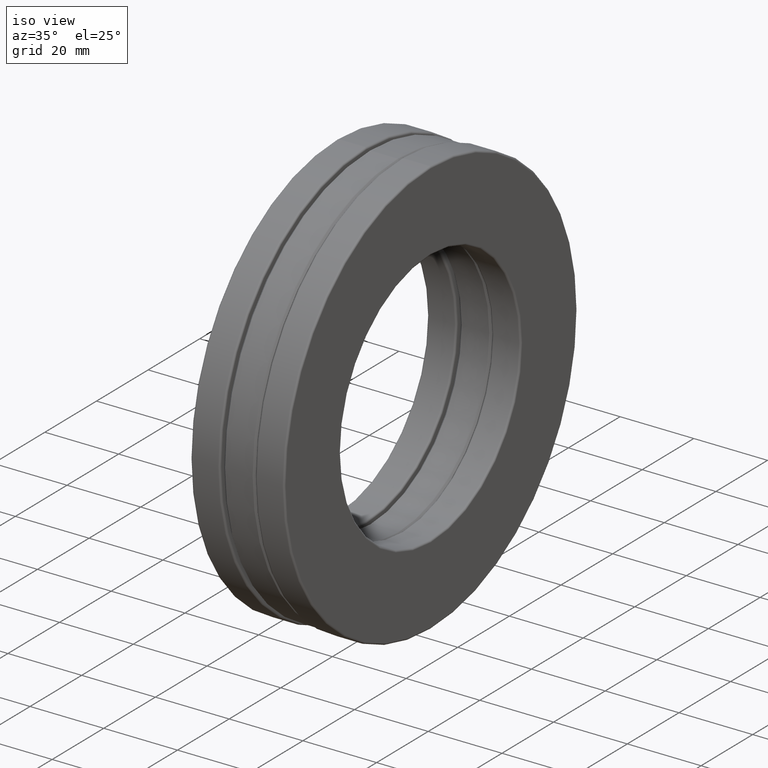
[diagram: clean part render]
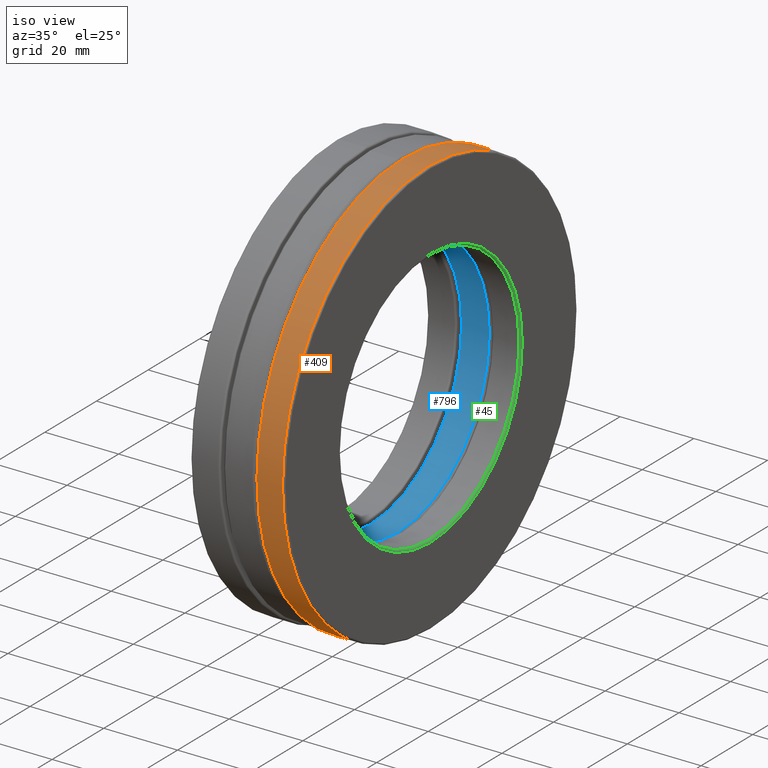
[diagram: same view with three faces highlighted in distinct colors, each labeled with its STEP entity id]
A machine part, iso view with three faces highlighted in distinct colors.
Their STEP definitions:

[orange] entity #409 — the highlighted cylindrical surface (bore or boss wall) has radius 56.7531 mm, axis along (-1, -0, -0).
#133 = EDGE_LOOP ( 'NONE', ( #630 ) ) ;
#162 = CARTESIAN_POINT ( 'NONE',  ( 0.4800000000000000900, 0.0000000000000000000, 0.0000000000000000000 ) ) ;
#212 = FACE_OUTER_BOUND ( 'NONE', #133, .T. ) ;
#275 = ORIENTED_EDGE ( 'NONE', *, *, #495, .F. ) ;
#283 = DIRECTION ( 'NONE',  ( 0.0000000000000000000, 0.0000000000000000000, 1.000000000000000000 ) ) ;
#409 = ADVANCED_FACE ( 'NONE', ( #914, #212 ), #1121, .T. ) ;
#478 = CARTESIAN_POINT ( 'NONE',  ( 0.4800000000000000900, 0.0000000000000000000, 2.234375000000000000 ) ) ;
#495 = EDGE_CURVE ( 'NONE', #1405, #1405, #584, .T. ) ;
#525 = AXIS2_PLACEMENT_3D ( 'NONE', #1471, #664, #1102 ) ;
#577 = CARTESIAN_POINT ( 'NONE',  ( 0.2074999999999999600, 0.0000000000000000000, 2.234375000000000000 ) ) ;
#584 = CIRCLE ( 'NONE', #776, 2.234375000000000000 ) ;
#595 = VERTEX_POINT ( 'NONE', #478 ) ;
#630 = ORIENTED_EDGE ( 'NONE', *, *, #1414, .T. ) ;
#642 = EDGE_LOOP ( 'NONE', ( #275 ) ) ;
#664 = DIRECTION ( 'NONE',  ( -1.000000000000000000, -0.0000000000000000000, -0.0000000000000000000 ) ) ;
#754 = DIRECTION ( 'NONE',  ( -1.000000000000000000, -0.0000000000000000000, -0.0000000000000000000 ) ) ;
#776 = AXIS2_PLACEMENT_3D ( 'NONE', #1094, #754, #1008 ) ;
#914 = FACE_OUTER_BOUND ( 'NONE', #642, .T. ) ;
#1008 = DIRECTION ( 'NONE',  ( 0.0000000000000000000, 0.0000000000000000000, 1.000000000000000000 ) ) ;
#1094 = CARTESIAN_POINT ( 'NONE',  ( 0.2074999999999999600, 0.0000000000000000000, 0.0000000000000000000 ) ) ;
#1102 = DIRECTION ( 'NONE',  ( 0.0000000000000000000, 0.0000000000000000000, 1.000000000000000000 ) ) ;
#1121 = CYLINDRICAL_SURFACE ( 'NONE', #525, 2.234375000000000000 ) ;
#1215 = CIRCLE ( 'NONE', #1292, 2.234375000000000000 ) ;
#1292 = AXIS2_PLACEMENT_3D ( 'NONE', #162, #1296, #283 ) ;
#1296 = DIRECTION ( 'NONE',  ( -1.000000000000000000, -0.0000000000000000000, -0.0000000000000000000 ) ) ;
#1405 = VERTEX_POINT ( 'NONE', #577 ) ;
#1414 = EDGE_CURVE ( 'NONE', #595, #595, #1215, .T. ) ;
#1471 = CARTESIAN_POINT ( 'NONE',  ( 0.0000000000000000000, 0.0000000000000000000, 0.0000000000000000000 ) ) ;

[blue] entity #796 — the highlighted cylindrical surface (bore or boss wall) has radius 35.433 mm, axis along (-1, -0, -0).
#117 = DIRECTION ( 'NONE',  ( -1.000000000000000000, -0.0000000000000000000, -0.0000000000000000000 ) ) ;
#242 = DIRECTION ( 'NONE',  ( 0.0000000000000000000, 0.0000000000000000000, 1.000000000000000000 ) ) ;
#257 = VERTEX_POINT ( 'NONE', #683 ) ;
#271 = ORIENTED_EDGE ( 'NONE', *, *, #1182, .T. ) ;
#376 = AXIS2_PLACEMENT_3D ( 'NONE', #1379, #117, #242 ) ;
#414 = AXIS2_PLACEMENT_3D ( 'NONE', #441, #1307, #1184 ) ;
#420 = CYLINDRICAL_SURFACE ( 'NONE', #414, 1.395000000000000000 ) ;
#441 = CARTESIAN_POINT ( 'NONE',  ( 0.0000000000000000000, 0.0000000000000000000, 0.0000000000000000000 ) ) ;
#483 = ORIENTED_EDGE ( 'NONE', *, *, #517, .F. ) ;
#517 = EDGE_CURVE ( 'NONE', #942, #942, #809, .T. ) ;
#536 = EDGE_LOOP ( 'NONE', ( #271 ) ) ;
#668 = FACE_OUTER_BOUND ( 'NONE', #536, .T. ) ;
#683 = CARTESIAN_POINT ( 'NONE',  ( -0.1474999999999999400, 0.0000000000000000000, 1.395000000000000000 ) ) ;
#796 = ADVANCED_FACE ( 'NONE', ( #1183, #668 ), #420, .F. ) ;
#808 = CIRCLE ( 'NONE', #376, 1.395000000000000000 ) ;
#809 = CIRCLE ( 'NONE', #1387, 1.395000000000000000 ) ;
#942 = VERTEX_POINT ( 'NONE', #1100 ) ;
#1046 = EDGE_LOOP ( 'NONE', ( #483 ) ) ;
#1100 = CARTESIAN_POINT ( 'NONE',  ( 0.1475000000000001300, 0.0000000000000000000, 1.395000000000000000 ) ) ;
#1182 = EDGE_CURVE ( 'NONE', #257, #257, #808, .T. ) ;
#1183 = FACE_OUTER_BOUND ( 'NONE', #1046, .T. ) ;
#1184 = DIRECTION ( 'NONE',  ( 0.0000000000000000000, 0.0000000000000000000, 1.000000000000000000 ) ) ;
#1234 = CARTESIAN_POINT ( 'NONE',  ( 0.1475000000000001300, 0.0000000000000000000, 0.0000000000000000000 ) ) ;
#1307 = DIRECTION ( 'NONE',  ( -1.000000000000000000, -0.0000000000000000000, -0.0000000000000000000 ) ) ;
#1379 = CARTESIAN_POINT ( 'NONE',  ( -0.1474999999999999400, 0.0000000000000000000, 0.0000000000000000000 ) ) ;
#1387 = AXIS2_PLACEMENT_3D ( 'NONE', #1234, #1447, #1469 ) ;
#1447 = DIRECTION ( 'NONE',  ( -1.000000000000000000, -0.0000000000000000000, -0.0000000000000000000 ) ) ;
#1469 = DIRECTION ( 'NONE',  ( 0.0000000000000000000, 0.0000000000000000000, 1.000000000000000000 ) ) ;

[green] entity #45 — the highlighted toroidal blend (fillet) surface has major radius 35.433 mm and minor (blend) radius 0.508 mm.
#27 = DIRECTION ( 'NONE',  ( -1.000000000000000000, -0.0000000000000000000, -0.0000000000000000000 ) ) ;
#43 = EDGE_LOOP ( 'NONE', ( #803 ) ) ;
#45 = ADVANCED_FACE ( 'NONE', ( #923, #593 ), #77, .T. ) ;
#77 = TOROIDAL_SURFACE ( 'NONE', #337, 1.395000000000000000, 0.01999999999999999000 ) ;
#106 = DIRECTION ( 'NONE',  ( -1.000000000000000000, -0.0000000000000000000, -0.0000000000000000000 ) ) ;
#213 = DIRECTION ( 'NONE',  ( -1.000000000000000000, -0.0000000000000000000, -0.0000000000000000000 ) ) ;
#294 = CARTESIAN_POINT ( 'NONE',  ( 0.4800000000000000900, 0.0000000000000000000, 1.375000000000000000 ) ) ;
#337 = AXIS2_PLACEMENT_3D ( 'NONE', #537, #213, #571 ) ;
#385 = EDGE_CURVE ( 'NONE', #955, #955, #502, .T. ) ;
#417 = AXIS2_PLACEMENT_3D ( 'NONE', #1257, #27, #1053 ) ;
#445 = ORIENTED_EDGE ( 'NONE', *, *, #652, .T. ) ;
#487 = CARTESIAN_POINT ( 'NONE',  ( 0.5000000000000000000, 0.0000000000000000000, 1.395000000000000000 ) ) ;
#502 = CIRCLE ( 'NONE', #897, 1.395000000000000000 ) ;
#537 = CARTESIAN_POINT ( 'NONE',  ( 0.4800000000000000900, 0.0000000000000000000, 0.0000000000000000000 ) ) ;
#556 = CARTESIAN_POINT ( 'NONE',  ( 0.5000000000000000000, 0.0000000000000000000, 0.0000000000000000000 ) ) ;
#571 = DIRECTION ( 'NONE',  ( 0.0000000000000000000, 0.0000000000000000000, 1.000000000000000000 ) ) ;
#593 = FACE_OUTER_BOUND ( 'NONE', #866, .T. ) ;
#652 = EDGE_CURVE ( 'NONE', #1242, #1242, #1410, .T. ) ;
#672 = DIRECTION ( 'NONE',  ( 0.0000000000000000000, 0.0000000000000000000, 1.000000000000000000 ) ) ;
#803 = ORIENTED_EDGE ( 'NONE', *, *, #385, .F. ) ;
#866 = EDGE_LOOP ( 'NONE', ( #445 ) ) ;
#897 = AXIS2_PLACEMENT_3D ( 'NONE', #556, #106, #672 ) ;
#923 = FACE_OUTER_BOUND ( 'NONE', #43, .T. ) ;
#955 = VERTEX_POINT ( 'NONE', #487 ) ;
#1053 = DIRECTION ( 'NONE',  ( 0.0000000000000000000, 0.0000000000000000000, 1.000000000000000000 ) ) ;
#1242 = VERTEX_POINT ( 'NONE', #294 ) ;
#1257 = CARTESIAN_POINT ( 'NONE',  ( 0.4800000000000000900, 0.0000000000000000000, 0.0000000000000000000 ) ) ;
#1410 = CIRCLE ( 'NONE', #417, 1.375000000000000000 ) ;